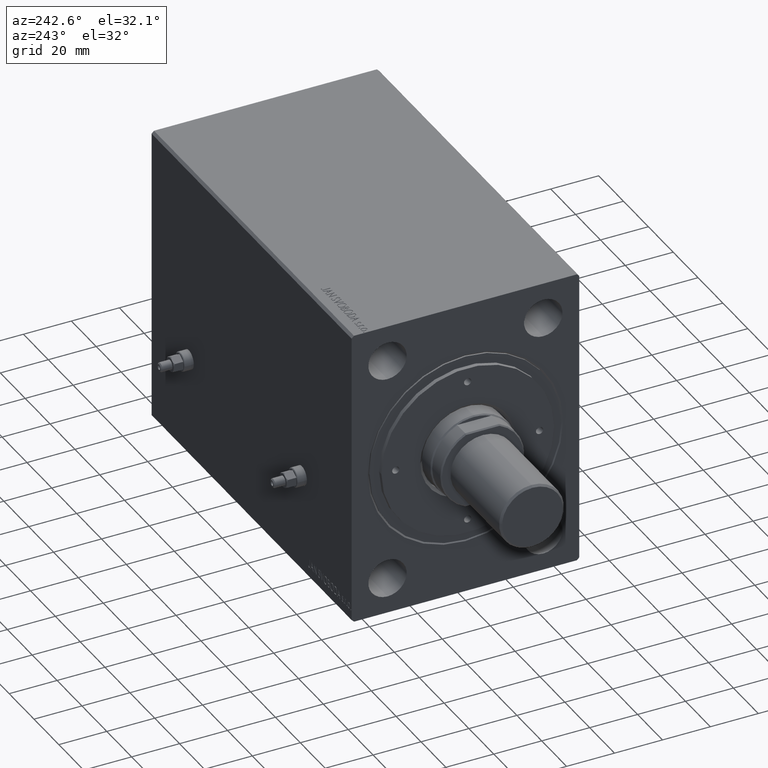
[diagram: clean part render]
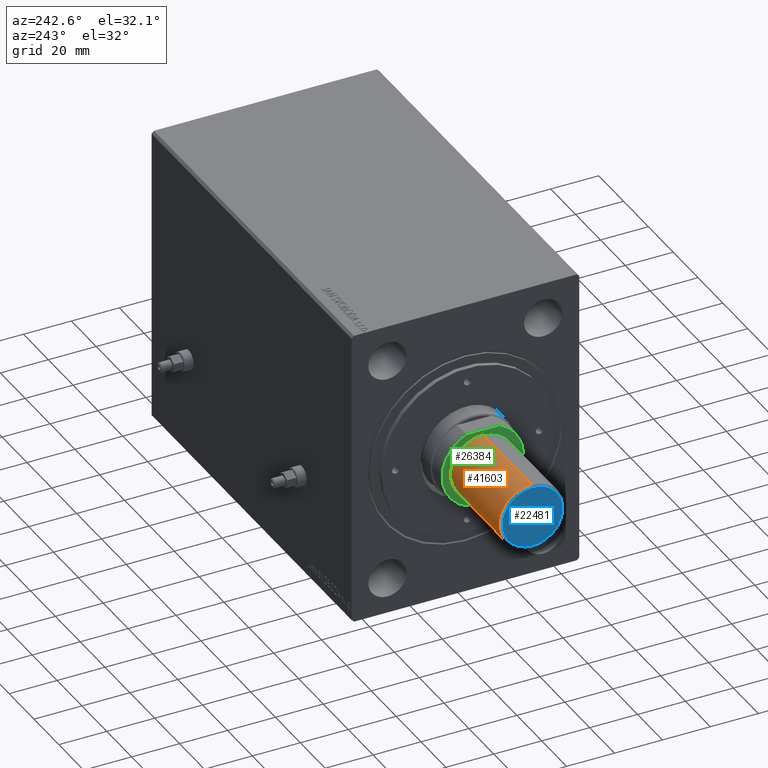
[diagram: same view with three faces highlighted in distinct colors, each labeled with its STEP entity id]
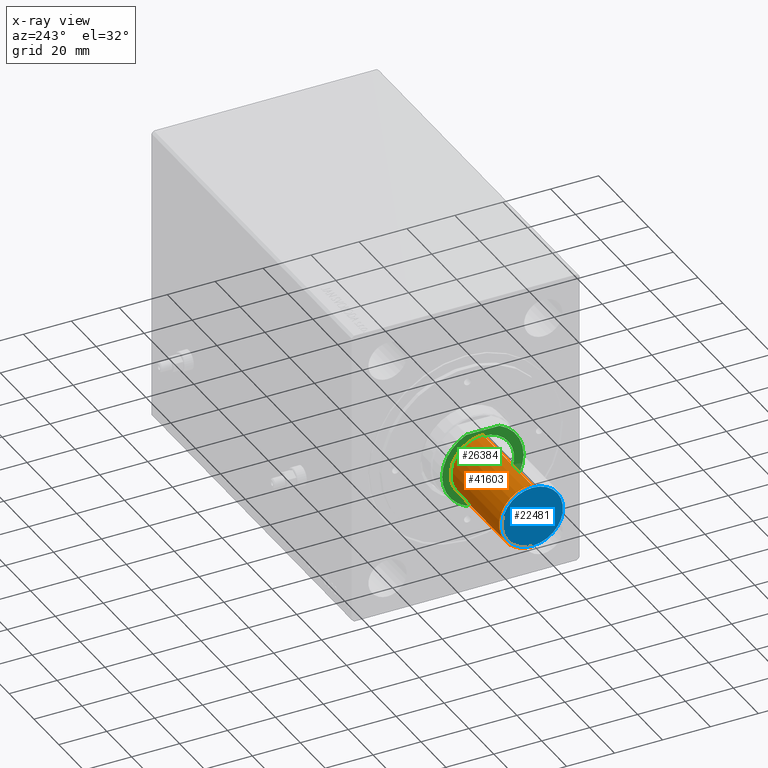
[diagram: x-ray of the same camera — body ghosted, the three highlighted faces saturated]
A machine part, auxiliary view with three faces highlighted in distinct colors.
The next image is the same camera in x-ray (body ghosted, the three faces saturated) — at least one of them is partly hidden behind the body in this view.
Their STEP definitions:

[orange] entity #41603 — the highlighted cylindrical surface (edge-blend (fillet) strip) has radius 13.5 mm, axis along (1, -0, -0).
#383 = CARTESIAN_POINT ( 'NONE',  ( 0.000000000000000000, 0.000000000000000000, 0.000000000000000000 ) ) ;
#701 = CARTESIAN_POINT ( 'NONE',  ( 0.000000000000000000, 0.000000000000000000, -39.19999999999998153 ) ) ;
#2593 = AXIS2_PLACEMENT_3D ( 'NONE', #383, #28105, #27665 ) ;
#3455 = DIRECTION ( 'NONE',  ( 0.000000000000000000, 0.000000000000000000, 1.000000000000000000 ) ) ;
#6043 = EDGE_CURVE ( 'NONE', #40243, #17146, #36214, .T. ) ;
#6281 = CIRCLE ( 'NONE', #2593, 13.50000000000000000 ) ;
#7400 = EDGE_CURVE ( 'NONE', #25548, #38068, #6281, .T. ) ;
#8487 = DIRECTION ( 'NONE',  ( -0.000000000000000000, -0.000000000000000000, 1.000000000000000000 ) ) ;
#10582 = FACE_OUTER_BOUND ( 'NONE', #24198, .T. ) ;
#13739 = ORIENTED_EDGE ( 'NONE', *, *, #41699, .T. ) ;
#14024 = LINE ( 'NONE', #27976, #34420 ) ;
#14241 = CARTESIAN_POINT ( 'NONE',  ( 0.000000000000000000, 0.000000000000000000, -40.00000000000000000 ) ) ;
#15465 = EDGE_CURVE ( 'NONE', #40243, #25548, #18170, .T. ) ;
#17146 = VERTEX_POINT ( 'NONE', #38663 ) ;
#17894 = DIRECTION ( 'NONE',  ( 0.000000000000000000, 0.000000000000000000, 1.000000000000000000 ) ) ;
#18170 = LINE ( 'NONE', #35598, #45146 ) ;
#24198 = EDGE_LOOP ( 'NONE', ( #41063, #13739, #38744, #39613 ) ) ;
#25548 = VERTEX_POINT ( 'NONE', #43342 ) ;
#27665 = DIRECTION ( 'NONE',  ( 1.000000000000000000, 0.000000000000000000, 0.000000000000000000 ) ) ;
#27976 = CARTESIAN_POINT ( 'NONE',  ( -13.50000000000000000, 1.653273178848926867E-15, -40.00000000000000000 ) ) ;
#28105 = DIRECTION ( 'NONE',  ( 0.000000000000000000, 0.000000000000000000, 1.000000000000000000 ) ) ;
#31422 = CYLINDRICAL_SURFACE ( 'NONE', #39499, 13.50000000000000000 ) ;
#32080 = DIRECTION ( 'NONE',  ( 1.000000000000000000, 0.000000000000000000, 0.000000000000000000 ) ) ;
#32787 = DIRECTION ( 'NONE',  ( 1.000000000000000000, 0.000000000000000000, 0.000000000000000000 ) ) ;
#32929 = CARTESIAN_POINT ( 'NONE',  ( -13.50000000000000000, 1.653273178848926867E-15, 0.000000000000000000 ) ) ;
#34420 = VECTOR ( 'NONE', #17894, 1000.000000000000000 ) ;
#35598 = CARTESIAN_POINT ( 'NONE',  ( 13.50000000000000000, 0.000000000000000000, -40.00000000000000000 ) ) ;
#35826 = DIRECTION ( 'NONE',  ( 0.000000000000000000, 0.000000000000000000, 1.000000000000000000 ) ) ;
#36214 = CIRCLE ( 'NONE', #42770, 13.50000000000000000 ) ;
#38068 = VERTEX_POINT ( 'NONE', #32929 ) ;
#38663 = CARTESIAN_POINT ( 'NONE',  ( -13.50000000000000000, 1.653273178848926867E-15, -39.19999999999998153 ) ) ;
#38744 = ORIENTED_EDGE ( 'NONE', *, *, #7400, .F. ) ;
#39499 = AXIS2_PLACEMENT_3D ( 'NONE', #14241, #3455, #32080 ) ;
#39613 = ORIENTED_EDGE ( 'NONE', *, *, #15465, .F. ) ;
#40243 = VERTEX_POINT ( 'NONE', #42389 ) ;
#41063 = ORIENTED_EDGE ( 'NONE', *, *, #6043, .T. ) ;
#41603 = ADVANCED_FACE ( 'NONE', ( #10582 ), #31422, .T. ) ;
#41699 = EDGE_CURVE ( 'NONE', #17146, #38068, #14024, .T. ) ;
#42389 = CARTESIAN_POINT ( 'NONE',  ( 13.50000000000000000, 0.000000000000000000, -39.19999999999998153 ) ) ;
#42770 = AXIS2_PLACEMENT_3D ( 'NONE', #701, #8487, #32787 ) ;
#43342 = CARTESIAN_POINT ( 'NONE',  ( 13.50000000000000000, 0.000000000000000000, 0.000000000000000000 ) ) ;
#45146 = VECTOR ( 'NONE', #35826, 1000.000000000000000 ) ;

[blue] entity #22481 — the highlighted planar face has unit normal (1, -0, -0).
#4988 = VERTEX_POINT ( 'NONE', #10084 ) ;
#6540 = AXIS2_PLACEMENT_3D ( 'NONE', #15820, #29784, #26350 ) ;
#7642 = ORIENTED_EDGE ( 'NONE', *, *, #41445, .T. ) ;
#10084 = CARTESIAN_POINT ( 'NONE',  ( 12.69999999999998685, 0.000000000000000000, -40.00000000000000000 ) ) ;
#13840 = CIRCLE ( 'NONE', #6540, 12.69999999999998685 ) ;
#15802 = CARTESIAN_POINT ( 'NONE',  ( -12.69999999999998685, 1.604287306883032058E-15, -40.00000000000000000 ) ) ;
#15820 = CARTESIAN_POINT ( 'NONE',  ( 0.000000000000000000, 0.000000000000000000, -40.00000000000000000 ) ) ;
#18270 = AXIS2_PLACEMENT_3D ( 'NONE', #22859, #18961, #26060 ) ;
#18961 = DIRECTION ( 'NONE',  ( -0.000000000000000000, -0.000000000000000000, -1.000000000000000000 ) ) ;
#21026 = DIRECTION ( 'NONE',  ( 0.000000000000000000, 0.000000000000000000, 1.000000000000000000 ) ) ;
#22481 = ADVANCED_FACE ( 'NONE', ( #24470 ), #35238, .F. ) ;
#22859 = CARTESIAN_POINT ( 'NONE',  ( 0.000000000000000000, 0.000000000000000000, -40.00000000000000000 ) ) ;
#24163 = CIRCLE ( 'NONE', #18270, 12.69999999999998685 ) ;
#24470 = FACE_OUTER_BOUND ( 'NONE', #29228, .T. ) ;
#26060 = DIRECTION ( 'NONE',  ( 1.000000000000000000, 0.000000000000000000, 0.000000000000000000 ) ) ;
#26350 = DIRECTION ( 'NONE',  ( 1.000000000000000000, 0.000000000000000000, 0.000000000000000000 ) ) ;
#28545 = DIRECTION ( 'NONE',  ( 1.000000000000000000, 0.000000000000000000, -0.000000000000000000 ) ) ;
#29122 = ORIENTED_EDGE ( 'NONE', *, *, #34426, .T. ) ;
#29228 = EDGE_LOOP ( 'NONE', ( #29122, #7642 ) ) ;
#29784 = DIRECTION ( 'NONE',  ( -0.000000000000000000, -0.000000000000000000, -1.000000000000000000 ) ) ;
#30119 = VERTEX_POINT ( 'NONE', #15802 ) ;
#34426 = EDGE_CURVE ( 'NONE', #4988, #30119, #13840, .T. ) ;
#35238 = PLANE ( 'NONE',  #35841 ) ;
#35841 = AXIS2_PLACEMENT_3D ( 'NONE', #38666, #21026, #28545 ) ;
#38666 = CARTESIAN_POINT ( 'NONE',  ( 0.000000000000000000, 0.000000000000000000, -40.00000000000000000 ) ) ;
#41445 = EDGE_CURVE ( 'NONE', #30119, #4988, #24163, .T. ) ;

[green] entity #26384 — the highlighted planar face has unit normal (-1, 0, 0).
#506 = DIRECTION ( 'NONE',  ( 1.000000000000000000, 0.000000000000000000, -0.000000000000000000 ) ) ;
#949 = FACE_BOUND ( 'NONE', #1170, .T. ) ;
#1052 = VERTEX_POINT ( 'NONE', #24724 ) ;
#1156 = CARTESIAN_POINT ( 'NONE',  ( 0.000000000000000000, 0.000000000000000000, 154.2000000000000171 ) ) ;
#1170 = EDGE_LOOP ( 'NONE', ( #20184, #22304 ) ) ;
#1407 = EDGE_CURVE ( 'NONE', #14766, #1570, #2007, .T. ) ;
#1502 = AXIS2_PLACEMENT_3D ( 'NONE', #4324, #42601, #21977 ) ;
#1570 = VERTEX_POINT ( 'NONE', #21233 ) ;
#1777 = DIRECTION ( 'NONE',  ( 0.000000000000000000, 1.000000000000000000, 0.000000000000000000 ) ) ;
#2007 = LINE ( 'NONE', #26306, #6128 ) ;
#3076 = EDGE_CURVE ( 'NONE', #1052, #22434, #6159, .T. ) ;
#3180 = AXIS2_PLACEMENT_3D ( 'NONE', #1156, #3927, #17918 ) ;
#3927 = DIRECTION ( 'NONE',  ( -0.000000000000000000, -0.000000000000000000, -1.000000000000000000 ) ) ;
#4324 = CARTESIAN_POINT ( 'NONE',  ( 0.000000000000000000, 0.000000000000000000, 154.2000000000000171 ) ) ;
#4596 = DIRECTION ( 'NONE',  ( 0.000000000000000000, -1.000000000000000000, 0.000000000000000000 ) ) ;
#6128 = VECTOR ( 'NONE', #1777, 1000.000000000000000 ) ;
#6159 = CIRCLE ( 'NONE', #3180, 13.05000000000003268 ) ;
#8857 = CIRCLE ( 'NONE', #1502, 16.99999999999996092 ) ;
#10665 = CARTESIAN_POINT ( 'NONE',  ( -15.49999999999997158, 6.982120021884430372, 154.2000000000000171 ) ) ;
#10865 = AXIS2_PLACEMENT_3D ( 'NONE', #36400, #26080, #40065 ) ;
#11066 = VERTEX_POINT ( 'NONE', #19949 ) ;
#11989 = CARTESIAN_POINT ( 'NONE',  ( 15.49999999999997158, -6.982120021884429484, 154.2000000000000171 ) ) ;
#12001 = EDGE_CURVE ( 'NONE', #22434, #1052, #26870, .T. ) ;
#14766 = VERTEX_POINT ( 'NONE', #11989 ) ;
#15222 = ORIENTED_EDGE ( 'NONE', *, *, #16798, .T. ) ;
#15340 = DIRECTION ( 'NONE',  ( -0.000000000000000000, -0.000000000000000000, -1.000000000000000000 ) ) ;
#16307 = CARTESIAN_POINT ( 'NONE',  ( 13.05000000000003268, 0.000000000000000000, 154.2000000000000171 ) ) ;
#16528 = ORIENTED_EDGE ( 'NONE', *, *, #39496, .T. ) ;
#16798 = EDGE_CURVE ( 'NONE', #25925, #11066, #40132, .T. ) ;
#17918 = DIRECTION ( 'NONE',  ( 1.000000000000000000, 0.000000000000000000, 0.000000000000000000 ) ) ;
#17931 = CARTESIAN_POINT ( 'NONE',  ( 0.000000000000000000, 0.000000000000000000, 154.2000000000000171 ) ) ;
#18075 = AXIS2_PLACEMENT_3D ( 'NONE', #43054, #15340, #36662 ) ;
#19949 = CARTESIAN_POINT ( 'NONE',  ( -15.49999999999997158, -6.982120021884429484, 154.2000000000000171 ) ) ;
#20031 = EDGE_CURVE ( 'NONE', #11066, #14766, #30629, .T. ) ;
#20152 = EDGE_LOOP ( 'NONE', ( #15222, #22312, #32630, #16528 ) ) ;
#20184 = ORIENTED_EDGE ( 'NONE', *, *, #12001, .T. ) ;
#21233 = CARTESIAN_POINT ( 'NONE',  ( 15.49999999999997158, 6.982120021884429484, 154.2000000000000171 ) ) ;
#21977 = DIRECTION ( 'NONE',  ( 1.000000000000000000, 0.000000000000000000, 0.000000000000000000 ) ) ;
#22304 = ORIENTED_EDGE ( 'NONE', *, *, #3076, .T. ) ;
#22312 = ORIENTED_EDGE ( 'NONE', *, *, #20031, .T. ) ;
#22434 = VERTEX_POINT ( 'NONE', #16307 ) ;
#24588 = FACE_OUTER_BOUND ( 'NONE', #20152, .T. ) ;
#24724 = CARTESIAN_POINT ( 'NONE',  ( -13.05000000000003268, 1.598164072887299718E-15, 154.2000000000000171 ) ) ;
#25925 = VERTEX_POINT ( 'NONE', #10665 ) ;
#26080 = DIRECTION ( 'NONE',  ( 0.000000000000000000, 0.000000000000000000, 1.000000000000000000 ) ) ;
#26306 = CARTESIAN_POINT ( 'NONE',  ( 15.49999999999997158, 7.088723439378881608, 154.2000000000000171 ) ) ;
#26384 = ADVANCED_FACE ( 'NONE', ( #24588, #949 ), #35355, .T. ) ;
#26870 = CIRCLE ( 'NONE', #18075, 13.05000000000003268 ) ;
#30629 = CIRCLE ( 'NONE', #10865, 16.99999999999996092 ) ;
#31893 = DIRECTION ( 'NONE',  ( 0.000000000000000000, 0.000000000000000000, 1.000000000000000000 ) ) ;
#32630 = ORIENTED_EDGE ( 'NONE', *, *, #1407, .T. ) ;
#35355 = PLANE ( 'NONE',  #42551 ) ;
#36006 = CARTESIAN_POINT ( 'NONE',  ( -15.49999999999997158, -7.088723439378881608, 154.2000000000000171 ) ) ;
#36400 = CARTESIAN_POINT ( 'NONE',  ( 0.000000000000000000, 0.000000000000000000, 154.2000000000000171 ) ) ;
#36662 = DIRECTION ( 'NONE',  ( 1.000000000000000000, 0.000000000000000000, 0.000000000000000000 ) ) ;
#39496 = EDGE_CURVE ( 'NONE', #1570, #25925, #8857, .T. ) ;
#40065 = DIRECTION ( 'NONE',  ( 1.000000000000000000, 0.000000000000000000, 0.000000000000000000 ) ) ;
#40132 = LINE ( 'NONE', #36006, #41519 ) ;
#41519 = VECTOR ( 'NONE', #4596, 1000.000000000000000 ) ;
#42551 = AXIS2_PLACEMENT_3D ( 'NONE', #17931, #31893, #506 ) ;
#42601 = DIRECTION ( 'NONE',  ( 0.000000000000000000, 0.000000000000000000, 1.000000000000000000 ) ) ;
#43054 = CARTESIAN_POINT ( 'NONE',  ( 0.000000000000000000, 0.000000000000000000, 154.2000000000000171 ) ) ;